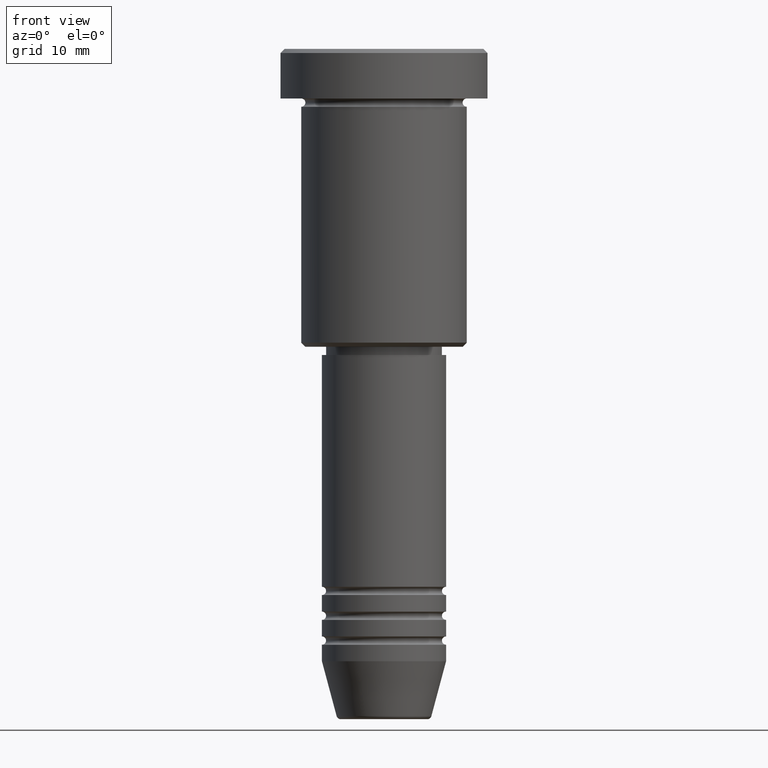
[diagram: clean part render]
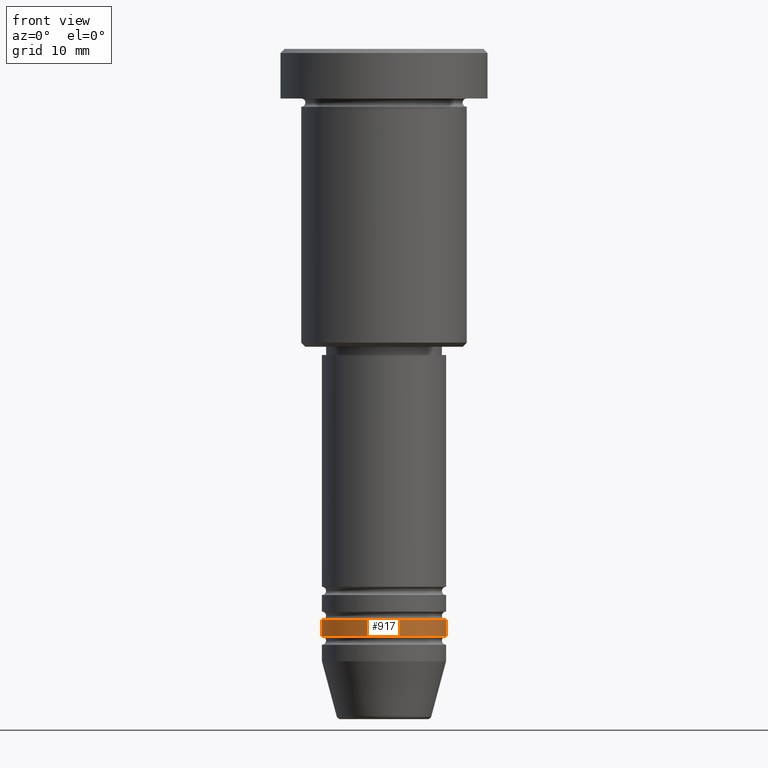
[diagram: same view with one face highlighted and labeled with its STEP entity id]
A machine part, front view. The second image highlights one B-rep face of the part: STEP entity #917.
In plain terms, the highlighted cylindrical surface (partial cylindrical patch) has radius 7.5 mm, axis along (-0, -0, 1).
Its self-contained STEP definition (entity closure, byte-faithful):
#17 = VECTOR ( 'NONE', #584, 1000.000000000000000 ) ;
#25 = CARTESIAN_POINT ( 'NONE',  ( 7.500000000000000000, 0.000000000000000000, 0.000000000000000000 ) ) ;
#34 = EDGE_CURVE ( 'NONE', #836, #258, #1037, .T. ) ;
#47 = CARTESIAN_POINT ( 'NONE',  ( 7.500000000000000000, 0.000000000000000000, -70.99999999999998579 ) ) ;
#117 = CARTESIAN_POINT ( 'NONE',  ( -7.500000000000000000, 9.184850993605147944E-16, 0.000000000000000000 ) ) ;
#123 = ORIENTED_EDGE ( 'NONE', *, *, #1080, .T. ) ;
#141 = CARTESIAN_POINT ( 'NONE',  ( 0.000000000000000000, 0.000000000000000000, -68.99999999999997158 ) ) ;
#258 = VERTEX_POINT ( 'NONE', #925 ) ;
#284 = VECTOR ( 'NONE', #476, 1000.000000000000000 ) ;
#317 = CARTESIAN_POINT ( 'NONE',  ( 0.000000000000000000, 0.000000000000000000, -70.99999999999998579 ) ) ;
#361 = FACE_OUTER_BOUND ( 'NONE', #743, .T. ) ;
#366 = CARTESIAN_POINT ( 'NONE',  ( -7.500000000000000000, 9.184850993605147944E-16, -68.99999999999997158 ) ) ;
#437 = CYLINDRICAL_SURFACE ( 'NONE', #662, 7.500000000000000000 ) ;
#440 = EDGE_CURVE ( 'NONE', #1023, #258, #489, .T. ) ;
#449 = ORIENTED_EDGE ( 'NONE', *, *, #509, .F. ) ;
#464 = DIRECTION ( 'NONE',  ( 1.000000000000000000, 0.000000000000000000, 0.000000000000000000 ) ) ;
#476 = DIRECTION ( 'NONE',  ( -0.000000000000000000, -0.000000000000000000, 1.000000000000000000 ) ) ;
#489 = CIRCLE ( 'NONE', #1166, 7.500000000000000000 ) ;
#509 = EDGE_CURVE ( 'NONE', #910, #1023, #946, .T. ) ;
#568 = AXIS2_PLACEMENT_3D ( 'NONE', #317, #955, #464 ) ;
#584 = DIRECTION ( 'NONE',  ( -0.000000000000000000, -0.000000000000000000, 1.000000000000000000 ) ) ;
#598 = DIRECTION ( 'NONE',  ( -0.000000000000000000, -0.000000000000000000, 1.000000000000000000 ) ) ;
#662 = AXIS2_PLACEMENT_3D ( 'NONE', #723, #1101, #1182 ) ;
#675 = DIRECTION ( 'NONE',  ( 1.000000000000000000, 0.000000000000000000, 0.000000000000000000 ) ) ;
#723 = CARTESIAN_POINT ( 'NONE',  ( 0.000000000000000000, 0.000000000000000000, 0.000000000000000000 ) ) ;
#743 = EDGE_LOOP ( 'NONE', ( #449, #123, #790, #1060 ) ) ;
#790 = ORIENTED_EDGE ( 'NONE', *, *, #34, .T. ) ;
#819 = CIRCLE ( 'NONE', #568, 7.500000000000000000 ) ;
#836 = VERTEX_POINT ( 'NONE', #47 ) ;
#910 = VERTEX_POINT ( 'NONE', #921 ) ;
#917 = ADVANCED_FACE ( 'NONE', ( #361 ), #437, .T. ) ;
#921 = CARTESIAN_POINT ( 'NONE',  ( -7.500000000000000000, 9.184850993605147944E-16, -70.99999999999998579 ) ) ;
#925 = CARTESIAN_POINT ( 'NONE',  ( 7.500000000000000000, 0.000000000000000000, -68.99999999999997158 ) ) ;
#946 = LINE ( 'NONE', #117, #17 ) ;
#955 = DIRECTION ( 'NONE',  ( -0.000000000000000000, -0.000000000000000000, 1.000000000000000000 ) ) ;
#1023 = VERTEX_POINT ( 'NONE', #366 ) ;
#1037 = LINE ( 'NONE', #25, #284 ) ;
#1060 = ORIENTED_EDGE ( 'NONE', *, *, #440, .F. ) ;
#1080 = EDGE_CURVE ( 'NONE', #910, #836, #819, .T. ) ;
#1101 = DIRECTION ( 'NONE',  ( -0.000000000000000000, -0.000000000000000000, 1.000000000000000000 ) ) ;
#1166 = AXIS2_PLACEMENT_3D ( 'NONE', #141, #598, #675 ) ;
#1182 = DIRECTION ( 'NONE',  ( 1.000000000000000000, 0.000000000000000000, 0.000000000000000000 ) ) ;